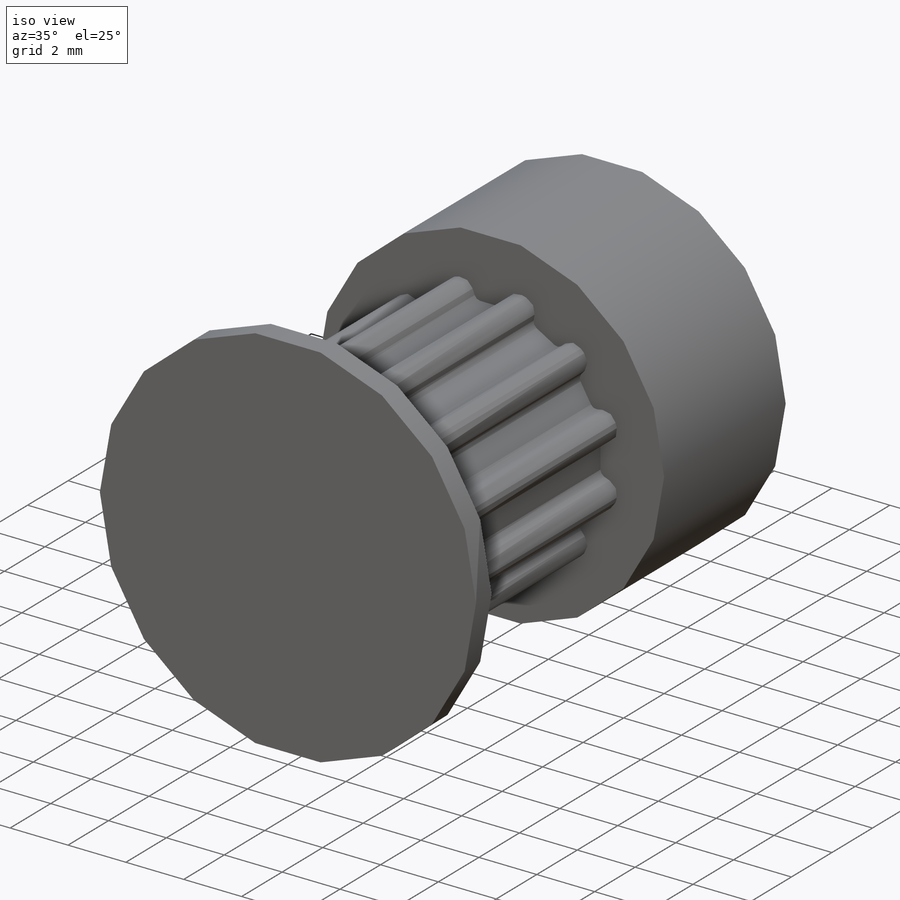
[diagram: iso view]
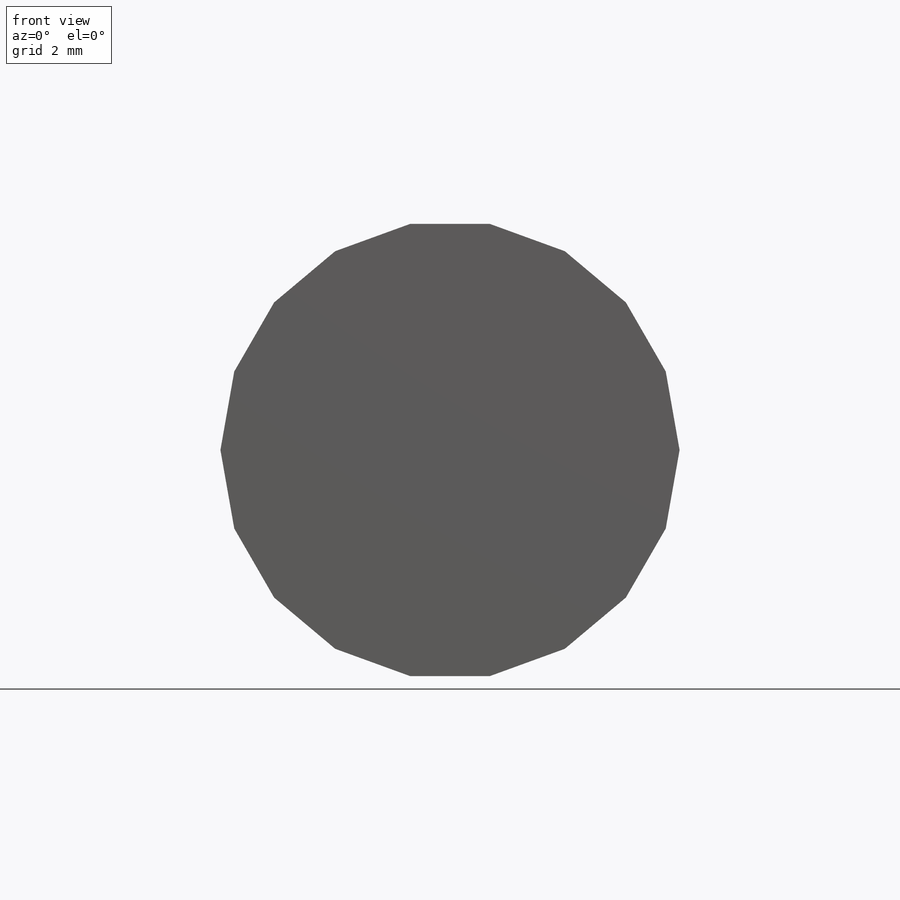
[diagram: front view]
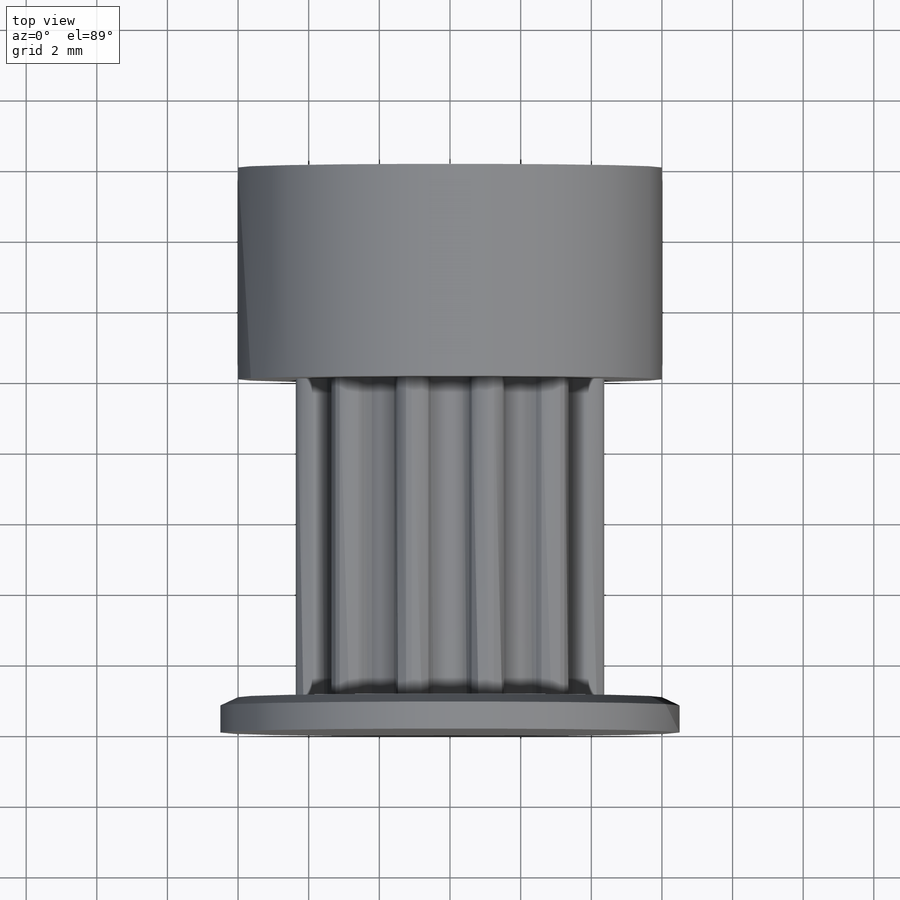
[diagram: top view]
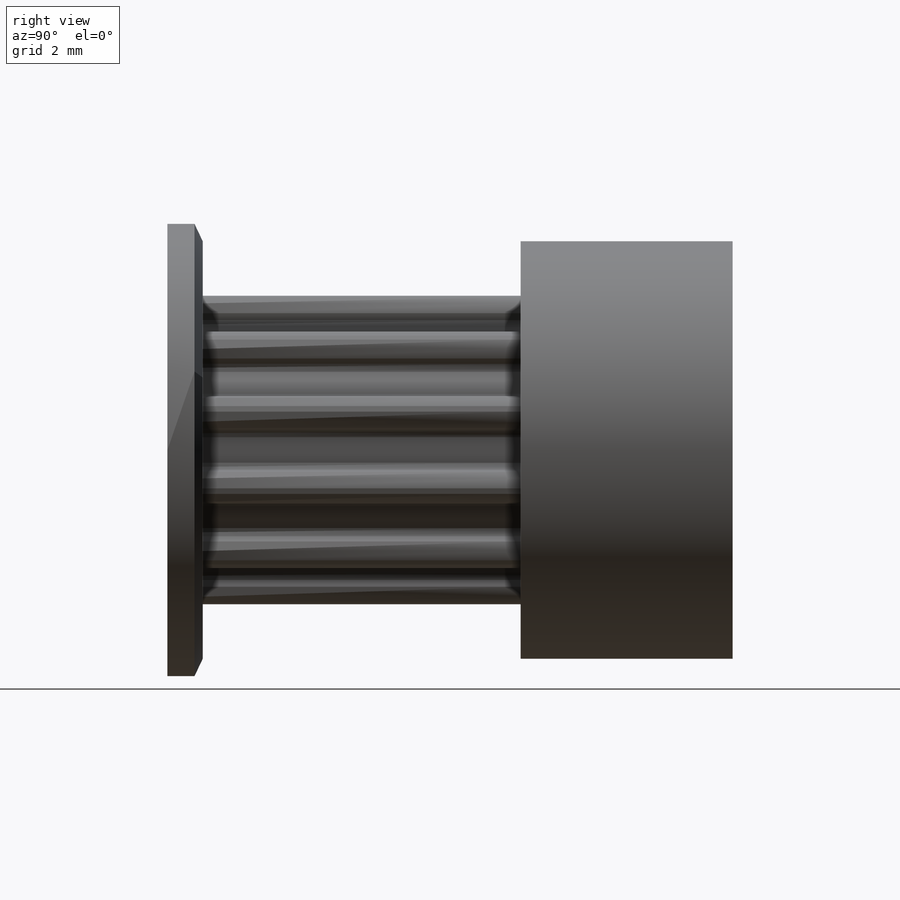
[diagram: right view]
SOLIDWORKS PART (.sldprt)
format: sldprt  version: not decoded by parser v0  size: 589,312 bytes
history: native  units: mm
features: sketch x26, plane x7, cut_revolve x7, revolve x4, pattern_circular x3, cut_extrude x3, material x1 (+12 scaffold rows collapsed)
feature tree (63):
  scaffold x12  (default folders/planes/origin — collapsed)
  material  "Material <not specified>"
  sketch  "support-front-body"  dims[diam-outer=9.0mm]
  sketch  "support-right-body"  dims[length=10.0mm]
  sketch  "support-right-chamfer"  dims[c1.height-chamfer-front=1.0mm c1.D2=~1.345239mm c1.angle-chamfer-front=45.0deg c1.height-chamfer-end=1.0mm c1.D4=~1.635005mm c1.angle-chamfer-back=45.0deg c1.D1=45.0deg c2.D1=1.0mm c2.height-chamfer-front=~1.414214mm c3.D1=1.0mm c3.D2=1.0mm c4.D1=1.0mm c4.D2=1.0mm c5.D1=1.0mm c5.D2=1.0mm c6.D1=1.0mm c6.height-chamfer-front=1.0mm c6.height-chamfer-end=~1.414214mm c7.D1=1.0mm c7.D2=1.0mm c8.D1=1.0mm c8.D2=1.0mm c9.D1=1.0mm c9.D2=1.0mm c10.D1=1.0mm c10.D2=1.0mm c10.height-chamfer-back=1.0mm]
  sketch  "support-right-hub"  dims[c1.diam-hub=12.0mm c1.length-hub=6.0mm c1.dist-hub=20.0mm c2.dist-hub=10.0mm]
  sketch  "support-right-bore"  dims[c1.diam-bore=7.0mm c1.length-bore=20.0mm c1.dist-bore=20.0mm c2.length-bore=20.0mm c2.D1=~4.718959mm c2.angle-bore-hole=122.0deg c3.D1=~4.127124mm c3.angle-bore-bottom=180.0deg c4.D1=3.5mm c4.D2=3.5mm c5.D1=3.5mm c5.D2=3.5mm c6.D1=3.5mm c6.diam-bore=3.5mm c7.diam-bore=4.0mm c7.D1=~20.012605mm c8.D1=~82.928772deg c8.length-bore=16.0mm c9.D1=~20.062314mm c10.D1=~9.034076deg c11.D1=~20.062314mm c11.angle-bore=90.0deg]
  sketch  "support-stop-screw-hole"  dims[c1.diam-stop-screw-hole=~2.866512mm c1.dist-stop-screw-hole=8.0mm c1.height-stop-screw=12.0mm c1.D1=12.0mm c1.D2=12.0mm c2.D1=12.0mm c2.D2=12.0mm c3.D1=12.0mm c3.D2=12.0mm c4.D1=12.0mm c4.D2=12.0mm c4.depth-stop-screw-hole=12.0mm c5.D1=~1.594127mm c5.angle-stop-screw-hole=90.0deg c5.height-stop-screw-hole=11.0mm c6.D1=~1.837086mm c6.angle-stop-screw-hole=180.0deg]
  sketch  "support-front-keygroove"  dims[c1.D1=6.0mm c1.width-keygroove=2.0mm c1.D3=90.0deg c2.D3=3.5mm c2.D4=90.0deg c2.height-key=1.0mm c2.D1=8.0mm c2.D2=90.0deg c2.dist-keygroove=8.0mm c2.height-keygroove=2.2mm]
  sketch  "support-front-tooth"  dims[c1.D3=0.5mm c1.diam-cog=2.4mm c2.D3=0.4mm c2.D1=2.5mm c2.D2=~0.402689mm c3.D2=40.0deg c3.D4=2.3mm c3.height-tooth=0.7mm c3.D1=~4.304459mm c4.D1=30.0deg c4.D2=~3.045357mm c5.D2=27.0deg c5.pitch=2.5mm c5.D1=~3.413953mm c6.D1=27.0deg c7.D1=~0.781613mm c8.D1=50.0deg c8.D2=~0.53758mm c9.D2=10.0deg c10.D2=~0.53758mm c11.D2=~18.796714deg c12.D2=~0.814397mm c13.D2=40.0deg c13.D4=1.0mm c13.D5=~1.249376mm c13.D6=~1.077469mm c14.D5=~0.82061mm c14.D6=~0.82061mm c14.height-tooth=0.7mm c14.D2=0.0mm]
  sketch  "support-right-flange"  dims[c1.D1=~7.212702mm c1.angle-flange=25.0deg c1.thickness-flange=1.0mm c1.diam-flange=28.0mm c1.diam-flange-inner=6.5mm c2.D1=28.0mm c2.D2=28.0mm c3.D1=28.0mm c3.diam-flange-outer=28.0mm c3.width-flange-outer=15.0mm c4.width-flange-outer=14.0mm c4.width-flange-inner=8.0mm c4.D1=~37.068434deg c4.diam-flange-outer=~30.20221mm c5.diam-flange-outer=~30.054182mm c5.D1=~28.218332mm c5.D2=~28.218332mm c6.D1=~28.218332mm c6.D2=~28.218332mm c7.D1=~28.218332mm c7.D2=~28.218332mm c7.diam-flange-outer=~29.874994mm c8.D1=~2.620876mm c8.angle-flange=180.0deg c8.D2=~1.030825mm c9.D2=~12.128149deg c10.D2=~8.194668mm c11.D2=~80.128149deg c12.D2=~26.56167mm c12.D3=~0.707991mm c13.D2=~0.707991mm c13.D3=~0.707991mm c14.D2=~0.707991mm c14.D3=~0.707991mm c15.D2=~19.187502mm c15.D3=~19.174436mm c16.D2=~19.174436mm c16.D3=~14.174436mm c17.D2=~14.174436mm c17.D3=~14.174436mm c18.D2=~14.174436mm c18.D3=~14.174436mm c19.D2=~14.174436mm c19.D3=~14.174436mm c20.D2=~14.174436mm c20.D3=~14.174436mm c21.D2=~14.174436mm c21.D3=~14.174436mm c22.D2=~14.174436mm c22.D3=~14.174436mm c23.D2=~14.174436mm c23.D3=~14.174436mm c24.D2=~14.174436mm c24.D3=~14.174436mm c25.D2=~14.174436mm c25.D3=~14.174436mm c26.D2=~14.174436mm c26.D3=~14.174436mm c27.D2=~14.174436mm c27.D3=~14.174436mm c28.D2=~14.174436mm c28.D3=~14.174436mm c29.D2=~14.174436mm c29.D3=~14.174436mm c30.D2=~14.174436mm c30.D3=~14.174436mm c31.D2=~14.174436mm c31.D3=~14.174436mm c32.D2=~14.174436mm c32.D3=~14.174436mm c33.D2=~14.174436mm c33.diam-flange-outer=13.0mm c34.D2=~80.200539deg c35.D2=0.0mm]
  sketch  "support-right-flange-profile"  dims[c1.D1=~0.393697mm c2.D1=25.0deg c2.D2=0.5mm]
  plane  "ref-plane-front"
  plane  "ref-plane-back"
  plane  "ref-plane-hub-front"
  plane  "ref-plane-hub-back"
  plane  "ref-plane-bore-front"
  plane  "ref-plane-bore-back"
  plane  "ref-plane-stop-screw-hole-top"
  sketch  "Sketch5"
  revolve  "body"  Angle=360deg
  sketch  "Sketch11"
  cut_revolve  "cut-chamfer-front"  Angle=360deg
  sketch  "Sketch13"
  cut_revolve  "cut-chamfer-back"  Angle=360deg
  sketch  "Sketch16"
  revolve  "body-hub"  Angle=360deg
  sketch  "Sketch17"
  cut_revolve  "body-bore"  Angle=360deg
  sketch  "Sketch19"
  cut_revolve  "body-stop-screw-hole"  Angle=360deg
  pattern_circular  "pattern-stop-screw-hole"  Count=2 Angle=90deg num-stop-screw-hole=2 angle-stop-screw-hole=90deg
  sketch  "Sketch21"
  cut_extrude  "cut-keygroove"  [1 undecoded]
  sketch  "Sketch23"  dims[D1=0.0mm]
  cut_extrude  "cut-tooth"  [1 undecoded]
  pattern_circular  "pattern-tooth"  Count=12 Angle=360deg num-tooth=12 angle-tooth=360deg
  sketch  "Sketch25"
  revolve  "body-flange-front"  Angle=360deg
  sketch  "Sketch26"
  revolve  "body-flange-back"  Angle=360deg
  sketch  "Sketch28"
  cut_revolve  "body-flange-profile-front"  Angle=360deg
  sketch  "Sketch29"
  cut_revolve  "body-flange-profile-back"  Angle=360deg
  sketch  "support-right-cut-body"  dims[diam=117.0mm]
  sketch  "support-front-cut-body"  dims[c1.D1=~41.508229mm c2.D1=25.0deg c2.D2=~56.066931mm c3.D2=31.0deg c3.D3=~51.406665mm c4.D3=51.0deg c4.D2=~53.066461mm c5.D2=15.0deg c5.D3=~20.004834mm c6.D3=35.0deg c6.D1=~52.580825mm c7.D1=35.0deg]
  sketch  "Sketch31"
  cut_revolve  "cut-body"  Angle=360deg
  sketch  "Sketch33"
  cut_extrude  "cut-front-body"  [1 undecoded]
  pattern_circular  "pattern-cut-front-body"  Count=6 Angle=360deg
decode coverage: 27 of 43 modeling features carry decoded parameters
note: ~ marks probable driven/reference dimensions
note: 3 parameter values undecoded
summary: no parameter record found for 3 features
note: suppression state not decoded; provenance and decode notes live in map.json
